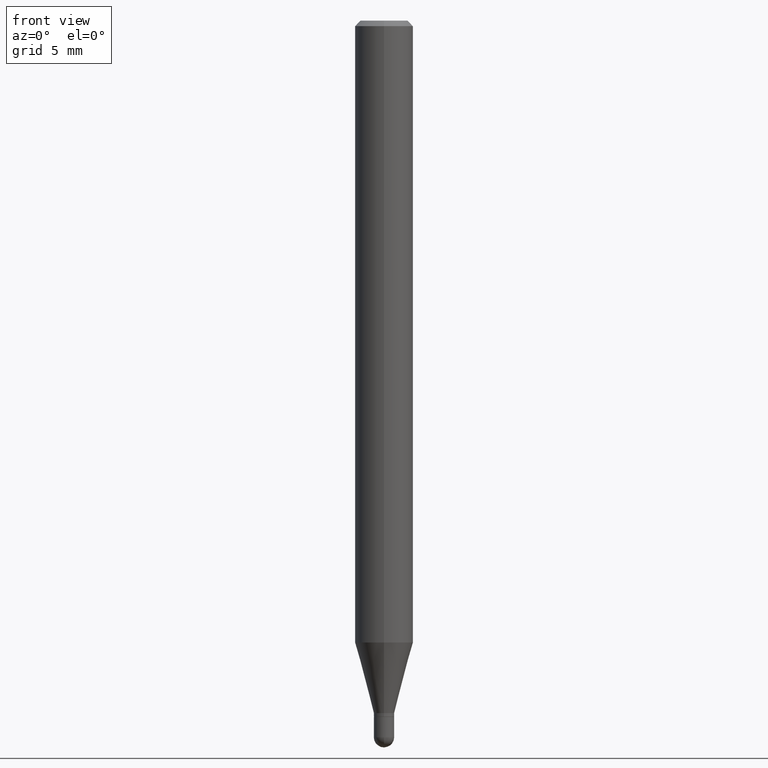
[diagram: clean part render]
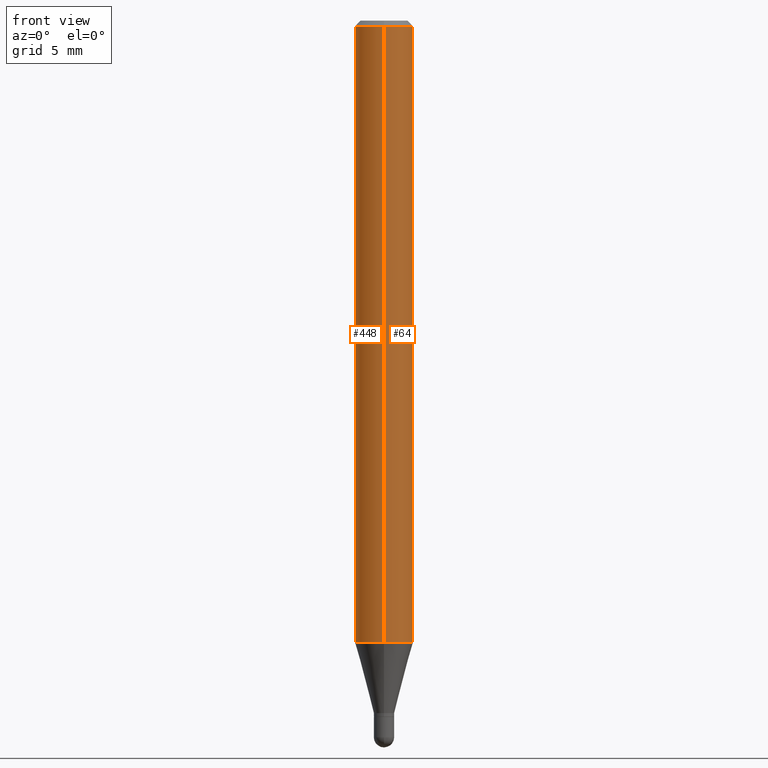
[diagram: same view with one multi-face feature highlighted, each face labeled with its STEP entity id]
A machine part, front view. The highlighted faces form ONE feature: a constant-radius fillet chain: 2 tangent blend faces with common blend radius 2.0002 mm. The faces share edges in the B-rep.
Their STEP definitions:
[1] entity #64 (Cylinder):
#19 = CARTESIAN_POINT ( 'NONE',  ( 0.000000000000000000, 0.000000000000000000, 0.000000000000000000 ) ) ;
#25 = DIRECTION ( 'NONE',  ( -2.445423250412128530E-29, 3.491546577302966933E-15, 1.000000000000000000 ) ) ;
#34 = CIRCLE ( 'NONE', #320, 0.07875000000000000056 ) ;
#36 = CIRCLE ( 'NONE', #46, 0.07875000000000000056 ) ;
#38 = CARTESIAN_POINT ( 'NONE',  ( 4.119117382740675669E-29, -5.881227389489135250E-15, -1.684418998652474020 ) ) ;
#42 = ORIENTED_EDGE ( 'NONE', *, *, #121, .T. ) ;
#46 = AXIS2_PLACEMENT_3D ( 'NONE', #38, #504, #114 ) ;
#55 = VECTOR ( 'NONE', #25, 39.37007874015748143 ) ;
#64 = ADVANCED_FACE ( 'NONE', ( #70 ), #256, .T. ) ;
#70 = FACE_OUTER_BOUND ( 'NONE', #206, .T. ) ;
#97 = CARTESIAN_POINT ( 'NONE',  ( 5.595524044111202169E-16, 0.07874999999999994504, -0.01500000000000038282 ) ) ;
#108 = DIRECTION ( 'NONE',  ( -2.445423250412128530E-29, 3.491546577302966933E-15, 1.000000000000000000 ) ) ;
#111 = VERTEX_POINT ( 'NONE', #97 ) ;
#113 = AXIS2_PLACEMENT_3D ( 'NONE', #19, #226, #422 ) ;
#114 = DIRECTION ( 'NONE',  ( -6.982962677686264344E-15, -1.000000000000000000, 3.469013325287953293E-15 ) ) ;
#121 = EDGE_CURVE ( 'NONE', #259, #111, #308, .T. ) ;
#123 = EDGE_CURVE ( 'NONE', #170, #414, #345, .T. ) ;
#125 = DIRECTION ( 'NONE',  ( -2.445423250412128530E-29, 3.491546577302966933E-15, 1.000000000000000000 ) ) ;
#170 = VERTEX_POINT ( 'NONE', #300 ) ;
#193 = CARTESIAN_POINT ( 'NONE',  ( 5.595524044111199211E-16, 0.07874999999999410250, -1.684418998652474242 ) ) ;
#206 = EDGE_LOOP ( 'NONE', ( #239, #42, #423, #426 ) ) ;
#215 = CARTESIAN_POINT ( 'NONE',  ( 5.595524044110787031E-16, 0.07875000000000000056, -2.749592929626086578E-16 ) ) ;
#226 = DIRECTION ( 'NONE',  ( -2.445423250412128530E-29, 3.491546577302966933E-15, 1.000000000000000000 ) ) ;
#239 = ORIENTED_EDGE ( 'NONE', *, *, #405, .T. ) ;
#256 = CYLINDRICAL_SURFACE ( 'NONE', #113, 0.07875000000000000056 ) ;
#259 = VERTEX_POINT ( 'NONE', #193 ) ;
#286 = DIRECTION ( 'NONE',  ( -6.982962677686264344E-15, -1.000000000000000000, 3.496114991891765576E-15 ) ) ;
#300 = CARTESIAN_POINT ( 'NONE',  ( -5.499083108677525221E-16, -0.07875000000000589861, -1.684418998652473798 ) ) ;
#308 = LINE ( 'NONE', #215, #55 ) ;
#320 = AXIS2_PLACEMENT_3D ( 'NONE', #325, #125, #286 ) ;
#325 = CARTESIAN_POINT ( 'NONE',  ( 3.668134875618218596E-31, -5.237319865954488043E-17, -0.01500000000000010700 ) ) ;
#345 = LINE ( 'NONE', #461, #401 ) ;
#401 = VECTOR ( 'NONE', #108, 39.37007874015748143 ) ;
#405 = EDGE_CURVE ( 'NONE', #170, #259, #36, .T. ) ;
#406 = CARTESIAN_POINT ( 'NONE',  ( -5.499083108677930499E-16, -0.07875000000000004219, -0.01499999999999983118 ) ) ;
#414 = VERTEX_POINT ( 'NONE', #406 ) ;
#422 = DIRECTION ( 'NONE',  ( -6.982962677686264344E-15, -1.000000000000000000, 3.491546577302966933E-15 ) ) ;
#423 = ORIENTED_EDGE ( 'NONE', *, *, #479, .F. ) ;
#426 = ORIENTED_EDGE ( 'NONE', *, *, #123, .F. ) ;
#461 = CARTESIAN_POINT ( 'NONE',  ( -5.499083108677933457E-16, -0.07875000000000000056, 2.749592929626086578E-16 ) ) ;
#479 = EDGE_CURVE ( 'NONE', #414, #111, #34, .T. ) ;
#504 = DIRECTION ( 'NONE',  ( -2.445423250412128530E-29, 3.491546577302966933E-15, 1.000000000000000000 ) ) ;
[2] entity #448 (Cylinder):
#25 = DIRECTION ( 'NONE',  ( -2.445423250412128530E-29, 3.491546577302966933E-15, 1.000000000000000000 ) ) ;
#27 = AXIS2_PLACEMENT_3D ( 'NONE', #473, #81, #358 ) ;
#35 = CARTESIAN_POINT ( 'NONE',  ( 0.000000000000000000, 0.000000000000000000, 0.000000000000000000 ) ) ;
#41 = DIRECTION ( 'NONE',  ( -2.445423250412128530E-29, 3.491546577302966933E-15, 1.000000000000000000 ) ) ;
#48 = ORIENTED_EDGE ( 'NONE', *, *, #121, .F. ) ;
#55 = VECTOR ( 'NONE', #25, 39.37007874015748143 ) ;
#58 = DIRECTION ( 'NONE',  ( -6.982962677686264344E-15, -1.000000000000000000, 3.496114991891765576E-15 ) ) ;
#77 = CYLINDRICAL_SURFACE ( 'NONE', #442, 0.07875000000000000056 ) ;
#81 = DIRECTION ( 'NONE',  ( -2.445423250412128530E-29, 3.491546577302966933E-15, 1.000000000000000000 ) ) ;
#97 = CARTESIAN_POINT ( 'NONE',  ( 5.595524044111202169E-16, 0.07874999999999994504, -0.01500000000000038282 ) ) ;
#108 = DIRECTION ( 'NONE',  ( -2.445423250412128530E-29, 3.491546577302966933E-15, 1.000000000000000000 ) ) ;
#111 = VERTEX_POINT ( 'NONE', #97 ) ;
#121 = EDGE_CURVE ( 'NONE', #259, #111, #308, .T. ) ;
#123 = EDGE_CURVE ( 'NONE', #170, #414, #345, .T. ) ;
#124 = ORIENTED_EDGE ( 'NONE', *, *, #298, .F. ) ;
#155 = DIRECTION ( 'NONE',  ( -6.982962677686264344E-15, -1.000000000000000000, 3.491546577302966933E-15 ) ) ;
#164 = DIRECTION ( 'NONE',  ( -2.445423250412128530E-29, 3.491546577302966933E-15, 1.000000000000000000 ) ) ;
#170 = VERTEX_POINT ( 'NONE', #300 ) ;
#193 = CARTESIAN_POINT ( 'NONE',  ( 5.595524044111199211E-16, 0.07874999999999410250, -1.684418998652474242 ) ) ;
#201 = CIRCLE ( 'NONE', #27, 0.07875000000000000056 ) ;
#203 = CARTESIAN_POINT ( 'NONE',  ( 3.668134875618218596E-31, -5.237319865954488043E-17, -0.01500000000000010700 ) ) ;
#215 = CARTESIAN_POINT ( 'NONE',  ( 5.595524044110787031E-16, 0.07875000000000000056, -2.749592929626086578E-16 ) ) ;
#259 = VERTEX_POINT ( 'NONE', #193 ) ;
#272 = EDGE_LOOP ( 'NONE', ( #48, #333, #483, #124 ) ) ;
#298 = EDGE_CURVE ( 'NONE', #111, #414, #443, .T. ) ;
#300 = CARTESIAN_POINT ( 'NONE',  ( -5.499083108677525221E-16, -0.07875000000000589861, -1.684418998652473798 ) ) ;
#308 = LINE ( 'NONE', #215, #55 ) ;
#333 = ORIENTED_EDGE ( 'NONE', *, *, #417, .T. ) ;
#345 = LINE ( 'NONE', #461, #401 ) ;
#358 = DIRECTION ( 'NONE',  ( -6.982962677686264344E-15, -1.000000000000000000, 3.469013325287953293E-15 ) ) ;
#401 = VECTOR ( 'NONE', #108, 39.37007874015748143 ) ;
#406 = CARTESIAN_POINT ( 'NONE',  ( -5.499083108677930499E-16, -0.07875000000000004219, -0.01499999999999983118 ) ) ;
#414 = VERTEX_POINT ( 'NONE', #406 ) ;
#417 = EDGE_CURVE ( 'NONE', #259, #170, #201, .T. ) ;
#442 = AXIS2_PLACEMENT_3D ( 'NONE', #35, #41, #155 ) ;
#443 = CIRCLE ( 'NONE', #476, 0.07875000000000000056 ) ;
#448 = ADVANCED_FACE ( 'NONE', ( #506 ), #77, .T. ) ;
#461 = CARTESIAN_POINT ( 'NONE',  ( -5.499083108677933457E-16, -0.07875000000000000056, 2.749592929626086578E-16 ) ) ;
#473 = CARTESIAN_POINT ( 'NONE',  ( 4.119117382740675669E-29, -5.881227389489135250E-15, -1.684418998652474020 ) ) ;
#476 = AXIS2_PLACEMENT_3D ( 'NONE', #203, #164, #58 ) ;
#483 = ORIENTED_EDGE ( 'NONE', *, *, #123, .T. ) ;
#506 = FACE_OUTER_BOUND ( 'NONE', #272, .T. ) ;